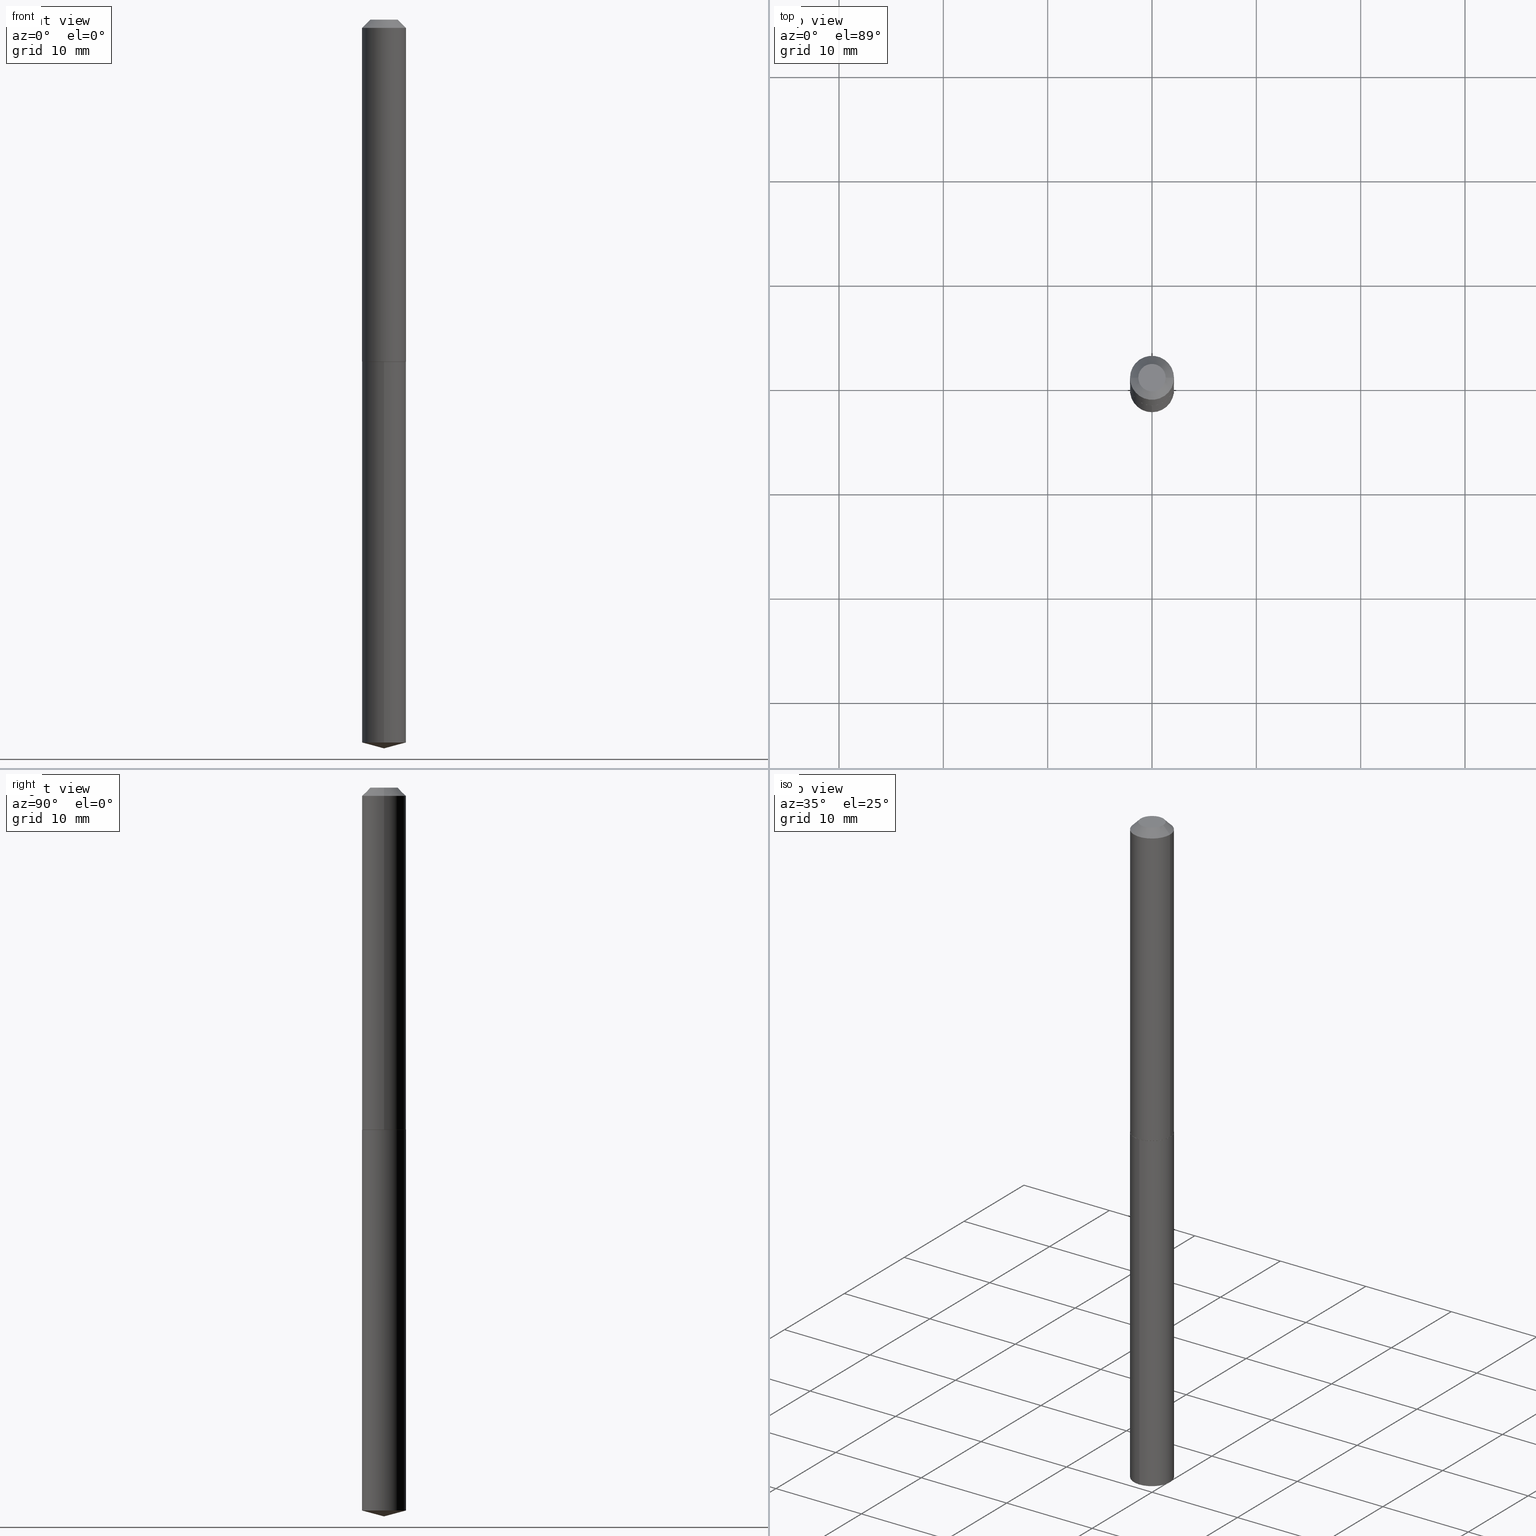
[diagram: canonical four-view strip — front | top / right | iso, engineering-drawing reading convention]
A machine part, canonical four-view strip (front | top / right | iso — engineering-drawing reading convention). The complete STEP part file that produces these views, byte-faithful:
ISO-10303-21;
HEADER;
FILE_DESCRIPTION (( 'STEP AP203' ),
    '1' );
FILE_NAME ('58032.STEP',
    '2024-04-23T00:34:03',
    ( '' ),
    ( '' ),
    'SwSTEP 2.0',
    'SolidWorks 2023',
    '' );
FILE_SCHEMA (( 'CONFIG_CONTROL_DESIGN' ));
ENDSEC;

DATA;
#1 = CARTESIAN_POINT ( 'NONE',  ( -7.487088864773333969E-48, 1.068957861474245803E-33, 3.061616997868390202E-19 ) ) ;
#2 = CIRCLE ( 'NONE', #229, 0.08300000000000000433 ) ;
#3 = DIRECTION ( 'NONE',  ( 1.000000000000000000, -6.982962677686270655E-15, 0.000000000000000000 ) ) ;
#4 = APPROVAL_ROLE ( '' ) ;
#5 = CYLINDRICAL_SURFACE ( 'NONE', #60, 0.08300000000000010147 ) ;
#6 = AXIS2_PLACEMENT_3D ( 'NONE', #174, #266, #3 ) ;
#7 = AXIS2_PLACEMENT_3D ( 'NONE', #113, #145, #199 ) ;
#8 = EDGE_CURVE ( 'NONE', #20, #187, #2, .T. ) ;
#9 = VERTEX_POINT ( 'NONE', #299 ) ;
#10 = COORDINATED_UNIVERSAL_TIME_OFFSET ( 5, 0, .BEHIND. ) ;
#11 = CLOSED_SHELL ( 'NONE', ( #210, #21, #66, #193, #379 ) ) ;
#12 = VECTOR ( 'NONE', #128, 39.37007874015748143 ) ;
#13 = EDGE_CURVE ( 'NONE', #109, #20, #61, .T. ) ;
#14 = ORIENTED_EDGE ( 'NONE', *, *, #131, .F. ) ;
#15 = DIRECTION ( 'NONE',  ( 1.000000000000000000, -6.982962677686267499E-15, 4.876134253573705861E-29 ) ) ;
#16 = ORIENTED_EDGE ( 'NONE', *, *, #13, .T. ) ;
#17 = DIRECTION ( 'NONE',  ( -2.445430008687302555E-29, 3.491536899068260310E-15, 1.000000000000000000 ) ) ;
#18 = VECTOR ( 'NONE', #46, 39.37007874015748854 ) ;
#19 = ADVANCED_FACE ( 'NONE', ( #295 ), #106, .T. ) ;
#20 = VERTEX_POINT ( 'NONE', #35 ) ;
#21 = ADVANCED_FACE ( 'NONE', ( #236 ), #215, .T. ) ;
#22 = CARTESIAN_POINT ( 'NONE',  ( 0.05175000000000001127, -5.167804485192814625E-16, 3.061616997899089043E-19 ) ) ;
#23 = ORIENTED_EDGE ( 'NONE', *, *, #369, .T. ) ;
#24 = CARTESIAN_POINT ( 'NONE',  ( -5.795859022478934309E-16, -0.08300000000000953837, -2.727760217028216250 ) ) ;
#25 = ORIENTED_EDGE ( 'NONE', *, *, #249, .T. ) ;
#26 = CARTESIAN_POINT ( 'NONE',  ( 6.670596778793894095E-29, -9.524003721313840210E-15, -2.727760217028216694 ) ) ;
#27 = AXIS2_PLACEMENT_3D ( 'NONE', #225, #196, #318 ) ;
#28 = CARTESIAN_POINT ( 'NONE',  ( -0.05175000000000001127, 4.159227144896877699E-16, 3.061616997841213404E-19 ) ) ;
#29 = CC_DESIGN_DATE_AND_TIME_ASSIGNMENT ( #70, #201, ( #144 ) ) ;
#30 = DIRECTION ( 'NONE',  ( -1.000000000000000000, 6.982962677686266711E-15, 0.000000000000000000 ) ) ;
#31 = PERSON_AND_ORGANIZATION ( #340, #282 ) ;
#32 = PRODUCT ( '58032', '58032', '', ( #237 ) ) ;
#33 = DIRECTION ( 'NONE',  ( -2.445430008687302555E-29, 3.491536899068260310E-15, 1.000000000000000000 ) ) ;
#34 =( NAMED_UNIT ( * ) SI_UNIT ( $, .STERADIAN. ) SOLID_ANGLE_UNIT ( ) );
#35 = CARTESIAN_POINT ( 'NONE',  ( -0.08300000000000000433, -1.717682259127079383E-15, -0.03125000000000020123 ) ) ;
#36 = CONICAL_SURFACE ( 'NONE', #148, 0.08300000000000018474, 0.7853981633979263410 ) ;
#37 = APPROVAL_PERSON_ORGANIZATION ( #239, #103, #41 ) ;
#38 = CALENDAR_DATE ( 2024, 22, 4 ) ;
#39 = ADVANCED_FACE ( 'NONE', ( #330 ), #85, .T. ) ;
#40 = DIRECTION ( 'NONE',  ( -1.000000000000000000, 6.982962677686266711E-15, 0.000000000000000000 ) ) ;
#41 = APPROVAL_ROLE ( '' ) ;
#42 = CARTESIAN_POINT ( 'NONE',  ( -5.795859022479286338E-16, -0.08300000000000451461, -1.290999999999999481 ) ) ;
#43 = CIRCLE ( 'NONE', #244, 0.08300000000000000433 ) ;
#44 = AXIS2_PLACEMENT_3D ( 'NONE', #172, #270, #91 ) ;
#45 = ORIENTED_EDGE ( 'NONE', *, *, #124, .T. ) ;
#46 = DIRECTION ( 'NONE',  ( 6.863315791527695837E-15, 0.9659258262890696445, 0.2588190451025154104 ) ) ;
#47 = ORIENTED_EDGE ( 'NONE', *, *, #326, .F. ) ;
#48 = FACE_OUTER_BOUND ( 'NONE', #258, .T. ) ;
#49 = ADVANCED_FACE ( 'NONE', ( #179 ), #36, .T. ) ;
#50 = ORIENTED_EDGE ( 'NONE', *, *, #326, .T. ) ;
#51 = CARTESIAN_POINT ( 'NONE',  ( 6.670596778793894095E-29, -9.524003721313840210E-15, -2.727760217028216694 ) ) ;
#52 = VECTOR ( 'NONE', #219, 39.37007874015748143 ) ;
#53 = ORIENTED_EDGE ( 'NONE', *, *, #249, .F. ) ;
#54 = CARTESIAN_POINT ( 'NONE',  ( 0.08300000000000000433, -6.785301256538861935E-16, -0.03125000000000020123 ) ) ;
#55 = VERTEX_POINT ( 'NONE', #235 ) ;
#56 = DIRECTION ( 'NONE',  ( 1.000000000000000000, -6.982962677686266711E-15, 0.000000000000000000 ) ) ;
#57 = ADVANCED_FACE ( 'NONE', ( #89 ), #293, .T. ) ;
#58 = LINE ( 'NONE', #357, #195 ) ;
#59 = AXIS2_PLACEMENT_3D ( 'NONE', #1, #126, #328 ) ;
#60 = AXIS2_PLACEMENT_3D ( 'NONE', #180, #212, #304 ) ;
#61 = LINE ( 'NONE', #122, #75 ) ;
#62 = CALENDAR_DATE ( 2024, 22, 4 ) ;
#63 = DIRECTION ( 'NONE',  ( 1.000000000000000000, -6.982962677686266711E-15, 0.000000000000000000 ) ) ;
#64 = PERSON_AND_ORGANIZATION_ROLE ( 'design_owner' ) ;
#65 = LINE ( 'NONE', #97, #101 ) ;
#66 = ADVANCED_FACE ( 'NONE', ( #354 ), #133, .T. ) ;
#67 = CC_DESIGN_DATE_AND_TIME_ASSIGNMENT ( #365, #99, ( #197 ) ) ;
#68 = CARTESIAN_POINT ( 'NONE',  ( 7.642090019328600035E-31, -1.091087918388489897E-16, -0.03125000000000020123 ) ) ;
#69 = AXIS2_PLACEMENT_3D ( 'NONE', #339, #188, #310 ) ;
#70 = DATE_AND_TIME ( #62, #324 ) ;
#71 = FACE_OUTER_BOUND ( 'NONE', #189, .T. ) ;
#72 = AXIS2_PLACEMENT_3D ( 'NONE', #265, #211, #263 ) ;
#73 = VERTEX_POINT ( 'NONE', #321 ) ;
#74 = CYLINDRICAL_SURFACE ( 'NONE', #135, 0.08300000000000000433 ) ;
#75 = VECTOR ( 'NONE', #238, 39.37007874015748143 ) ;
#76 = AXIS2_PLACEMENT_3D ( 'NONE', #108, #284, #376 ) ;
#77 = ORIENTED_EDGE ( 'NONE', *, *, #202, .T. ) ;
#78 = EDGE_CURVE ( 'NONE', #83, #20, #58, .T. ) ;
#79 = DIRECTION ( 'NONE',  ( -6.982962677686266711E-15, -1.000000000000000000, 6.582766249793405374E-15 ) ) ;
#80 = APPLICATION_CONTEXT ( 'configuration controlled 3d designs of mechanical parts and assemblies' ) ;
#81 = ORIENTED_EDGE ( 'NONE', *, *, #296, .F. ) ;
#82 = LINE ( 'NONE', #345, #305 ) ;
#83 = VERTEX_POINT ( 'NONE', #28 ) ;
#84 = DIRECTION ( 'NONE',  ( -1.000000000000000000, 6.982962677686265922E-15, -4.876176775795935793E-29 ) ) ;
#85 = CONICAL_SURFACE ( 'NONE', #259, 0.08300000000000018474, 0.7853981633979263410 ) ;
#86 = ORIENTED_EDGE ( 'NONE', *, *, #107, .T. ) ;
#87 = CARTESIAN_POINT ( 'NONE',  ( -3.743544432386666985E-48, 5.344789307371229014E-34, 1.530808498934195101E-19 ) ) ;
#88 = PRODUCT_RELATED_PRODUCT_CATEGORY ( 'detail', '', ( #32 ) ) ;
#89 = FACE_OUTER_BOUND ( 'NONE', #251, .T. ) ;
#90 = CARTESIAN_POINT ( 'NONE',  ( 5.897504706809497452E-16, 0.08299999999999047029, -2.727760217028217582 ) ) ;
#91 = DIRECTION ( 'NONE',  ( -6.982962677686265922E-15, -1.000000000000000000, 3.510303681827612034E-15 ) ) ;
#92 = COORDINATED_UNIVERSAL_TIME_OFFSET ( 5, 0, .BEHIND. ) ;
#93 = AXIS2_PLACEMENT_3D ( 'NONE', #162, #115, #372 ) ;
#94 = COORDINATED_UNIVERSAL_TIME_OFFSET ( 5, 0, .BEHIND. ) ;
#95 = EDGE_CURVE ( 'NONE', #381, #9, #65, .T. ) ;
#96 = ADVANCED_FACE ( 'NONE', ( #207 ), #203, .F. ) ;
#97 = CARTESIAN_POINT ( 'NONE',  ( 5.897504706809146409E-16, 0.08299999999999550793, -1.290999999999999925 ) ) ;
#98 = CARTESIAN_POINT ( 'NONE',  ( 3.157100228785009728E-29, -4.507502408446498919E-15, -1.290999999999999481 ) ) ;
#99 = DATE_TIME_ROLE ( 'classification_date' ) ;
#100 = DIRECTION ( 'NONE',  ( -0.7071067811868855246, 7.493145998871575317E-15, 0.7071067811862095098 ) ) ;
#101 = VECTOR ( 'NONE', #33, 39.37007874015748143 ) ;
#102 = VECTOR ( 'NONE', #286, 39.37007874015748143 ) ;
#103 = APPROVAL ( #362, 'UNSPECIFIED' ) ;
#104 = ORIENTED_EDGE ( 'NONE', *, *, #277, .F. ) ;
#105 = DESIGN_CONTEXT ( 'detailed design', #80, 'design' ) ;
#106 = CONICAL_SURFACE ( 'NONE', #315, 0.08300000000000000433, 0.7853981633974450594 ) ;
#107 = EDGE_CURVE ( 'NONE', #342, #319, #348, .T. ) ;
#108 = CARTESIAN_POINT ( 'NONE',  ( 3.157100228785010288E-29, -4.507502408446500497E-15, -1.290999999999999703 ) ) ;
#109 = VERTEX_POINT ( 'NONE', #327 ) ;
#110 = CYLINDRICAL_SURFACE ( 'NONE', #359, 0.08300000000000000433 ) ;
#111 = LOCAL_TIME ( 20, 34, 3.000000000000000000, #242 ) ;
#112 = EDGE_LOOP ( 'NONE', ( #14, #351, #159, #283 ) ) ;
#113 = CARTESIAN_POINT ( 'NONE',  ( 3.157100228785010288E-29, -4.507502408446500497E-15, -1.290999999999999703 ) ) ;
#114 = ORIENTED_EDGE ( 'NONE', *, *, #213, .T. ) ;
#115 = DIRECTION ( 'NONE',  ( -2.445468806185136597E-29, 3.491481338843145583E-15, 1.000000000000000000 ) ) ;
#116 = EDGE_LOOP ( 'NONE', ( #161, #168, #130, #309 ) ) ;
#117 = FACE_OUTER_BOUND ( 'NONE', #377, .T. ) ;
#118 = DIRECTION ( 'NONE',  ( -2.445468806185136597E-29, 3.491481338843145583E-15, 1.000000000000000000 ) ) ;
#119 = APPROVAL_DATE_TIME ( #329, #103 ) ;
#120 = DIRECTION ( 'NONE',  ( 1.000000000000000000, -6.982962677686270655E-15, 0.000000000000000000 ) ) ;
#121 = LENGTH_MEASURE_WITH_UNIT ( LENGTH_MEASURE( 0.02539999999999999897 ), #204 );
#122 = CARTESIAN_POINT ( 'NONE',  ( -0.08300000000000010147, 5.897504706808838753E-16, -4.082716124911576462E-30 ) ) ;
#123 = CALENDAR_DATE ( 2024, 22, 4 ) ;
#124 = EDGE_CURVE ( 'NONE', #55, #109, #186, .T. ) ;
#125 = LOCAL_TIME ( 20, 34, 3.000000000000000000, #92 ) ;
#126 = DIRECTION ( 'NONE',  ( -2.445468806185136597E-29, 3.491481338843145583E-15, 1.000000000000000000 ) ) ;
#127 = FACE_OUTER_BOUND ( 'NONE', #183, .T. ) ;
#128 = DIRECTION ( 'NONE',  ( -2.445430008687302555E-29, 3.491536899068260310E-15, 1.000000000000000000 ) ) ;
#129 = AXIS2_PLACEMENT_3D ( 'NONE', #51, #17, #192 ) ;
#130 = ORIENTED_EDGE ( 'NONE', *, *, #184, .T. ) ;
#131 = EDGE_CURVE ( 'NONE', #344, #83, #220, .T. ) ;
#132 = SHAPE_DEFINITION_REPRESENTATION ( #208, #271 ) ;
#133 = CONICAL_SURFACE ( 'NONE', #44, 146.9311341562562063, 1.308996938995749204 ) ;
#134 = APPROVAL ( #353, 'UNSPECIFIED' ) ;
#135 = AXIS2_PLACEMENT_3D ( 'NONE', #257, #378, #281 ) ;
#136 = ADVANCED_FACE ( 'NONE', ( #127 ), #316, .T. ) ;
#137 = ORIENTED_EDGE ( 'NONE', *, *, #363, .F. ) ;
#138 = FACE_OUTER_BOUND ( 'NONE', #385, .T. ) ;
#139 = ORIENTED_EDGE ( 'NONE', *, *, #349, .F. ) ;
#140 = DIRECTION ( 'NONE',  ( 0.7071067811868855246, -2.468850131085797074E-15, 0.7071067811862095098 ) ) ;
#141 = ORIENTED_EDGE ( 'NONE', *, *, #131, .T. ) ;
#142 = DIRECTION ( 'NONE',  ( -6.745023994389841499E-15, -0.9659258262890678681, 0.2588190451025221828 ) ) ;
#143 = CARTESIAN_POINT ( 'NONE',  ( 7.642090019328600035E-31, -1.091087918388489897E-16, -0.03125000000000020123 ) ) ;
#144 = PRODUCT_DEFINITION ( 'UNKNOWN', '', #274, #105 ) ;
#145 = DIRECTION ( 'NONE',  ( -2.445430008687302555E-29, 3.491536899068260310E-15, 1.000000000000000000 ) ) ;
#146 = ORIENTED_EDGE ( 'NONE', *, *, #184, .F. ) ;
#147 = CARTESIAN_POINT ( 'NONE',  ( 6.725033577447213903E-29, -9.601583015936470550E-15, -2.750000000000000000 ) ) ;
#148 = AXIS2_PLACEMENT_3D ( 'NONE', #262, #364, #120 ) ;
#149 =( GEOMETRIC_REPRESENTATION_CONTEXT ( 3 ) GLOBAL_UNCERTAINTY_ASSIGNED_CONTEXT ( ( #276 ) ) GLOBAL_UNIT_ASSIGNED_CONTEXT ( ( #388, #260, #34 ) ) REPRESENTATION_CONTEXT ( 'NONE', 'WORKASPACE' ) );
#150 = ADVANCED_FACE ( 'NONE', ( #71 ), #5, .T. ) ;
#151 = CARTESIAN_POINT ( 'NONE',  ( 3.155877494381918608E-29, -4.505756667777078994E-15, -1.290499999999999758 ) ) ;
#152 = PERSON_AND_ORGANIZATION_ROLE ( 'classification_officer' ) ;
#153 = DIRECTION ( 'NONE',  ( -0.7071067811865452413, 2.468850131082233000E-15, -0.7071067811865497932 ) ) ;
#154 = DIRECTION ( 'NONE',  ( 1.000000000000000000, -6.982962677686270655E-15, 0.000000000000000000 ) ) ;
#155 = LINE ( 'NONE', #42, #12 ) ;
#156 = APPROVAL_PERSON_ORGANIZATION ( #175, #333, #4 ) ;
#157 = DATE_AND_TIME ( #306, #205 ) ;
#158 = CIRCLE ( 'NONE', #7, 0.08300000000000000433 ) ;
#159 = ORIENTED_EDGE ( 'NONE', *, *, #217, .T. ) ;
#160 = CARTESIAN_POINT ( 'NONE',  ( 0.08250000000000007327, -5.083596829355616396E-15, -1.290999999999999481 ) ) ;
#161 = ORIENTED_EDGE ( 'NONE', *, *, #95, .F. ) ;
#162 = CARTESIAN_POINT ( 'NONE',  ( 3.155877494381918608E-29, -4.505756667777078994E-15, -1.290499999999999758 ) ) ;
#163 = ORIENTED_EDGE ( 'NONE', *, *, #181, .T. ) ;
#164 = LINE ( 'NONE', #147, #18 ) ;
#165 = APPROVAL_PERSON_ORGANIZATION ( #233, #134, #185 ) ;
#166 = ORIENTED_EDGE ( 'NONE', *, *, #336, .F. ) ;
#167 = DIRECTION ( 'NONE',  ( -2.445468806185136597E-29, 3.491481338843145583E-15, 1.000000000000000000 ) ) ;
#168 = ORIENTED_EDGE ( 'NONE', *, *, #277, .T. ) ;
#169 = LINE ( 'NONE', #54, #102 ) ;
#170 = CARTESIAN_POINT ( 'NONE',  ( -8.955178938410331359E-28, 1.278604278962956094E-13, 36.62007874015748143 ) ) ;
#171 = CIRCLE ( 'NONE', #27, 0.08250000000000007327 ) ;
#172 = CARTESIAN_POINT ( 'NONE',  ( -8.955178938410331359E-28, 1.278604278962956094E-13, 36.62007874015748143 ) ) ;
#173 = PERSON_AND_ORGANIZATION ( #340, #282 ) ;
#174 = CARTESIAN_POINT ( 'NONE',  ( 3.155877494381918608E-29, -4.505756667777078994E-15, -1.290499999999999758 ) ) ;
#175 = PERSON_AND_ORGANIZATION ( #340, #282 ) ;
#176 = DIRECTION ( 'NONE',  ( 1.000000000000000000, -6.982962677686265922E-15, 4.876176775795935793E-29 ) ) ;
#177 = DATE_AND_TIME ( #38, #335 ) ;
#178 = CC_DESIGN_SECURITY_CLASSIFICATION ( #197, ( #274 ) ) ;
#179 = FACE_OUTER_BOUND ( 'NONE', #373, .T. ) ;
#180 = CARTESIAN_POINT ( 'NONE',  ( 0.000000000000000000, 0.000000000000000000, 0.000000000000000000 ) ) ;
#181 = EDGE_CURVE ( 'NONE', #319, #109, #366, .T. ) ;
#182 = AXIS2_PLACEMENT_3D ( 'NONE', #87, #343, #84 ) ;
#183 = EDGE_LOOP ( 'NONE', ( #137, #81, #214, #370 ) ) ;
#184 = EDGE_CURVE ( 'NONE', #368, #226, #155, .T. ) ;
#185 = APPROVAL_ROLE ( '' ) ;
#186 = CIRCLE ( 'NONE', #6, 0.08300000000000018474 ) ;
#187 = VERTEX_POINT ( 'NONE', #243 ) ;
#188 = DIRECTION ( 'NONE',  ( 2.445430008687302275E-29, -3.491536899068260310E-15, -1.000000000000000000 ) ) ;
#189 = EDGE_LOOP ( 'NONE', ( #247, #114, #23, #313 ) ) ;
#190 = CARTESIAN_POINT ( 'NONE',  ( -0.08250000000000007327, -3.918655424270305728E-15, -1.290999999999999481 ) ) ;
#191 = ORIENTED_EDGE ( 'NONE', *, *, #336, .T. ) ;
#192 = DIRECTION ( 'NONE',  ( -6.982962677686266711E-15, -1.000000000000000000, 6.582766249793405374E-15 ) ) ;
#193 = ADVANCED_FACE ( 'NONE', ( #279 ), #74, .T. ) ;
#194 = ORIENTED_EDGE ( 'NONE', *, *, #296, .T. ) ;
#195 = VECTOR ( 'NONE', #153, 39.37007874015748143 ) ;
#196 = DIRECTION ( 'NONE',  ( -2.445468806185136597E-29, 3.491481338843145583E-15, 1.000000000000000000 ) ) ;
#197 = SECURITY_CLASSIFICATION ( '', '', #294 ) ;
#198 = ORIENTED_EDGE ( 'NONE', *, *, #369, .F. ) ;
#199 = DIRECTION ( 'NONE',  ( -6.982962677686266711E-15, -1.000000000000000000, 3.291383124896702687E-15 ) ) ;
#200 = DIRECTION ( 'NONE',  ( 1.000000000000000000, -6.982962677686265922E-15, 4.876176775795935232E-29 ) ) ;
#201 = DATE_TIME_ROLE ( 'creation_date' ) ;
#202 = EDGE_CURVE ( 'NONE', #73, #368, #82, .T. ) ;
#203 = PLANE ( 'NONE',  #301 ) ;
#204 =( LENGTH_UNIT ( ) NAMED_UNIT ( * ) SI_UNIT ( $, .METRE. ) );
#205 = LOCAL_TIME ( 20, 34, 3.000000000000000000, #10 ) ;
#206 = DIRECTION ( 'NONE',  ( 1.000000000000000000, -6.982962677686261189E-15, 0.000000000000000000 ) ) ;
#207 = FACE_OUTER_BOUND ( 'NONE', #337, .T. ) ;
#208 = PRODUCT_DEFINITION_SHAPE ( 'NONE', 'NONE',  #144 ) ;
#209 = DIRECTION ( 'NONE',  ( -2.445430008687302555E-29, 3.491536899068260310E-15, 1.000000000000000000 ) ) ;
#210 = ADVANCED_FACE ( 'NONE', ( #138 ), #110, .T. ) ;
#211 = DIRECTION ( 'NONE',  ( 0.000000000000000000, 0.000000000000000000, 1.000000000000000000 ) ) ;
#212 = DIRECTION ( 'NONE',  ( -2.445468806185136597E-29, 3.491481338843145583E-15, 1.000000000000000000 ) ) ;
#213 = EDGE_CURVE ( 'NONE', #109, #55, #216, .T. ) ;
#214 = ORIENTED_EDGE ( 'NONE', *, *, #78, .T. ) ;
#215 = CONICAL_SURFACE ( 'NONE', #273, 146.9311341562562063, 1.308996938995749204 ) ;
#216 = CIRCLE ( 'NONE', #93, 0.08300000000000018474 ) ;
#217 = EDGE_CURVE ( 'NONE', #187, #20, #371, .T. ) ;
#218 = ORIENTED_EDGE ( 'NONE', *, *, #124, .F. ) ;
#219 = DIRECTION ( 'NONE',  ( -2.445468806185136877E-29, 3.491481338843145188E-15, 1.000000000000000000 ) ) ;
#220 = CIRCLE ( 'NONE', #59, 0.05175000000000001127 ) ;
#221 = ORIENTED_EDGE ( 'NONE', *, *, #107, .F. ) ;
#222 = AXIS2_PLACEMENT_3D ( 'NONE', #241, #302, #40 ) ;
#223 = PLANE ( 'NONE',  #182 ) ;
#224 = ORIENTED_EDGE ( 'NONE', *, *, #240, .T. ) ;
#225 = CARTESIAN_POINT ( 'NONE',  ( 3.157100228785009728E-29, -4.507502408446498919E-15, -1.290999999999999481 ) ) ;
#226 = VERTEX_POINT ( 'NONE', #347 ) ;
#227 = DIRECTION ( 'NONE',  ( -6.982962677686266711E-15, -1.000000000000000000, 3.291383124896702687E-15 ) ) ;
#228 = DIRECTION ( 'NONE',  ( -2.445468806185136597E-29, 3.491481338843145583E-15, 1.000000000000000000 ) ) ;
#229 = AXIS2_PLACEMENT_3D ( 'NONE', #143, #228, #63 ) ;
#230 = PLANE ( 'NONE',  #69 ) ;
#231 = CIRCLE ( 'NONE', #308, 0.05175000000000001127 ) ;
#232 = DIRECTION ( 'NONE',  ( -2.445468806185136597E-29, 3.491481338843145583E-15, 1.000000000000000000 ) ) ;
#233 = PERSON_AND_ORGANIZATION ( #340, #282 ) ;
#234 = CC_DESIGN_PERSON_AND_ORGANIZATION_ASSIGNMENT ( #173, #300, ( #274 ) ) ;
#235 = CARTESIAN_POINT ( 'NONE',  ( 0.08300000000000018474, -5.085342570025040266E-15, -1.290499999999999758 ) ) ;
#236 = FACE_OUTER_BOUND ( 'NONE', #375, .T. ) ;
#237 = MECHANICAL_CONTEXT ( 'NONE', #380, 'mechanical' ) ;
#238 = DIRECTION ( 'NONE',  ( -2.445468806185136877E-29, 3.491481338843145188E-15, 1.000000000000000000 ) ) ;
#239 = PERSON_AND_ORGANIZATION ( #340, #282 ) ;
#240 = EDGE_CURVE ( 'NONE', #368, #381, #261, .T. ) ;
#241 = CARTESIAN_POINT ( 'NONE',  ( 7.642090019328600035E-31, -1.091087918388489897E-16, -0.03125000000000020123 ) ) ;
#242 = COORDINATED_UNIVERSAL_TIME_OFFSET ( 5, 0, .BEHIND. ) ;
#243 = CARTESIAN_POINT ( 'NONE',  ( 0.08300000000000000433, -6.886946940868090917E-16, -0.03125000000000020123 ) ) ;
#244 = AXIS2_PLACEMENT_3D ( 'NONE', #26, #314, #79 ) ;
#245 = EDGE_LOOP ( 'NONE', ( #166, #77, #104 ) ) ;
#246 = MANIFOLD_SOLID_BREP ( 'Body-Move/Copy2[1]', #11 ) ;
#247 = ORIENTED_EDGE ( 'NONE', *, *, #13, .F. ) ;
#248 = CARTESIAN_POINT ( 'NONE',  ( -7.487088864773333969E-48, 1.068957861474245803E-33, 3.061616997868390202E-19 ) ) ;
#249 = EDGE_CURVE ( 'NONE', #226, #9, #158, .T. ) ;
#250 = CIRCLE ( 'NONE', #76, 0.08300000000000000433 ) ;
#251 = EDGE_LOOP ( 'NONE', ( #45, #16, #254, #198 ) ) ;
#252 = DIRECTION ( 'NONE',  ( -2.445468806185136597E-29, 3.491481338843145583E-15, 1.000000000000000000 ) ) ;
#253 = MANIFOLD_SOLID_BREP ( 'Body-Move/Copy2[2]', #291 ) ;
#254 = ORIENTED_EDGE ( 'NONE', *, *, #217, .F. ) ;
#255 = CARTESIAN_POINT ( 'NONE',  ( 0.08300000000000018474, -5.085342570025040266E-15, -1.290499999999999758 ) ) ;
#256 = ORIENTED_EDGE ( 'NONE', *, *, #181, .F. ) ;
#257 = CARTESIAN_POINT ( 'NONE',  ( 3.157100228785010288E-29, -4.507502408446500497E-15, -1.290999999999999703 ) ) ;
#258 = EDGE_LOOP ( 'NONE', ( #194, #141 ) ) ;
#259 = AXIS2_PLACEMENT_3D ( 'NONE', #151, #118, #154 ) ;
#260 =( NAMED_UNIT ( * ) PLANE_ANGLE_UNIT ( ) SI_UNIT ( $, .RADIAN. ) );
#261 = CIRCLE ( 'NONE', #129, 0.08300000000000000433 ) ;
#262 = CARTESIAN_POINT ( 'NONE',  ( 3.155877494381918608E-29, -4.505756667777078994E-15, -1.290499999999999758 ) ) ;
#263 = DIRECTION ( 'NONE',  ( 1.000000000000000000, 0.000000000000000000, 0.000000000000000000 ) ) ;
#264 = CARTESIAN_POINT ( 'NONE',  ( 3.157100228785009728E-29, -4.507502408446498919E-15, -1.290999999999999481 ) ) ;
#265 = CARTESIAN_POINT ( 'NONE',  ( 0.000000000000000000, 0.000000000000000000, 0.000000000000000000 ) ) ;
#266 = DIRECTION ( 'NONE',  ( -2.445468806185136597E-29, 3.491481338843145583E-15, 1.000000000000000000 ) ) ;
#267 = PERSON_AND_ORGANIZATION ( #340, #282 ) ;
#268 = CC_DESIGN_PERSON_AND_ORGANIZATION_ASSIGNMENT ( #31, #152, ( #197 ) ) ;
#269 = PERSON_AND_ORGANIZATION_ROLE ( 'design_supplier' ) ;
#270 = DIRECTION ( 'NONE',  ( -2.445430008687302555E-29, 3.491536899068260310E-15, 1.000000000000000000 ) ) ;
#271 = ADVANCED_BREP_SHAPE_REPRESENTATION ( '58032', ( #246, #253, #72 ), #149 ) ;
#272 = ADVANCED_FACE ( 'NONE', ( #48 ), #223, .F. ) ;
#273 = AXIS2_PLACEMENT_3D ( 'NONE', #170, #209, #387 ) ;
#274 = PRODUCT_DEFINITION_FORMATION_WITH_SPECIFIED_SOURCE ( 'ANY', '', #32, .NOT_KNOWN. ) ;
#275 = AXIS2_PLACEMENT_3D ( 'NONE', #320, #167, #56 ) ;
#276 = UNCERTAINTY_MEASURE_WITH_UNIT (LENGTH_MEASURE( 1.000000000000000082E-05 ), #388, 'distance_accuracy_value', 'NONE');
#277 = EDGE_CURVE ( 'NONE', #381, #368, #43, .T. ) ;
#278 = EDGE_LOOP ( 'NONE', ( #86, #163, #218, #47 ) ) ;
#279 = FACE_OUTER_BOUND ( 'NONE', #116, .T. ) ;
#280 = ORIENTED_EDGE ( 'NONE', *, *, #202, .F. ) ;
#281 = DIRECTION ( 'NONE',  ( -6.982962677686266711E-15, -1.000000000000000000, 3.291383124896702687E-15 ) ) ;
#282 = ORGANIZATION ( 'UNSPECIFIED', 'UNSPECIFIED', '' ) ;
#283 = ORIENTED_EDGE ( 'NONE', *, *, #78, .F. ) ;
#284 = DIRECTION ( 'NONE',  ( -2.445430008687302555E-29, 3.491536899068260310E-15, 1.000000000000000000 ) ) ;
#285 = ORIENTED_EDGE ( 'NONE', *, *, #240, .F. ) ;
#286 = DIRECTION ( 'NONE',  ( 0.7071067811865452413, -7.319954787623248157E-15, -0.7071067811865497932 ) ) ;
#287 = ORIENTED_EDGE ( 'NONE', *, *, #338, .T. ) ;
#288 = CC_DESIGN_PERSON_AND_ORGANIZATION_ASSIGNMENT ( #297, #269, ( #274 ) ) ;
#289 = LINE ( 'NONE', #382, #52 ) ;
#290 = DIRECTION ( 'NONE',  ( 2.445468806185136597E-29, -3.491481338843145583E-15, -1.000000000000000000 ) ) ;
#291 = CLOSED_SHELL ( 'NONE', ( #19, #57, #39, #96, #49, #150, #136, #272 ) ) ;
#292 = VECTOR ( 'NONE', #140, 39.37007874015748143 ) ;
#293 = CYLINDRICAL_SURFACE ( 'NONE', #383, 0.08300000000000010147 ) ;
#294 = SECURITY_CLASSIFICATION_LEVEL ( 'unclassified' ) ;
#295 = FACE_OUTER_BOUND ( 'NONE', #112, .T. ) ;
#296 = EDGE_CURVE ( 'NONE', #83, #344, #231, .T. ) ;
#297 = PERSON_AND_ORGANIZATION ( #340, #282 ) ;
#298 = CC_DESIGN_PERSON_AND_ORGANIZATION_ASSIGNMENT ( #267, #64, ( #32 ) ) ;
#299 = CARTESIAN_POINT ( 'NONE',  ( 5.897504706809500410E-16, 0.08299999999999550793, -1.290999999999999925 ) ) ;
#300 = PERSON_AND_ORGANIZATION_ROLE ( 'creator' ) ;
#301 = AXIS2_PLACEMENT_3D ( 'NONE', #98, #323, #176 ) ;
#302 = DIRECTION ( 'NONE',  ( 2.445468806185136597E-29, -3.491481338843145583E-15, -1.000000000000000000 ) ) ;
#303 = COORDINATED_UNIVERSAL_TIME_OFFSET ( 5, 0, .BEHIND. ) ;
#304 = DIRECTION ( 'NONE',  ( 1.000000000000000000, -6.982962677686265922E-15, 4.876176775795935232E-29 ) ) ;
#305 = VECTOR ( 'NONE', #142, 39.37007874015748854 ) ;
#306 = CALENDAR_DATE ( 2024, 22, 4 ) ;
#307 = APPROVAL_DATE_TIME ( #157, #134 ) ;
#308 = AXIS2_PLACEMENT_3D ( 'NONE', #248, #252, #15 ) ;
#309 = ORIENTED_EDGE ( 'NONE', *, *, #338, .F. ) ;
#310 = DIRECTION ( 'NONE',  ( 6.982962677686265922E-15, 1.000000000000000000, -3.491536899068260310E-15 ) ) ;
#311 = ORIENTED_EDGE ( 'NONE', *, *, #95, .T. ) ;
#312 = LINE ( 'NONE', #255, #292 ) ;
#313 = ORIENTED_EDGE ( 'NONE', *, *, #8, .F. ) ;
#314 = DIRECTION ( 'NONE',  ( -2.445430008687302555E-29, 3.491536899068260310E-15, 1.000000000000000000 ) ) ;
#315 = AXIS2_PLACEMENT_3D ( 'NONE', #68, #290, #30 ) ;
#316 = CONICAL_SURFACE ( 'NONE', #222, 0.08300000000000000433, 0.7853981633974450594 ) ;
#317 = ORIENTED_EDGE ( 'NONE', *, *, #349, .T. ) ;
#318 = DIRECTION ( 'NONE',  ( 1.000000000000000000, -6.982962677686261189E-15, 0.000000000000000000 ) ) ;
#319 = VERTEX_POINT ( 'NONE', #190 ) ;
#320 = CARTESIAN_POINT ( 'NONE',  ( 7.642090019328600035E-31, -1.091087918388489897E-16, -0.03125000000000020123 ) ) ;
#321 = CARTESIAN_POINT ( 'NONE',  ( 6.724932523890081046E-29, -9.601726472437715656E-15, -2.750000000000000000 ) ) ;
#322 = APPROVAL_STATUS ( 'not_yet_approved' ) ;
#323 = DIRECTION ( 'NONE',  ( -2.438088387897960049E-29, 3.491481338843145188E-15, 1.000000000000000000 ) ) ;
#324 = LOCAL_TIME ( 20, 34, 3.000000000000000000, #303 ) ;
#325 = PERSON_AND_ORGANIZATION ( #340, #282 ) ;
#326 = EDGE_CURVE ( 'NONE', #342, #55, #312, .T. ) ;
#327 = CARTESIAN_POINT ( 'NONE',  ( -0.08300000000000018474, -3.916006197096194527E-15, -1.290499999999999758 ) ) ;
#328 = DIRECTION ( 'NONE',  ( 1.000000000000000000, -6.982962677686267499E-15, 4.876134253573705861E-29 ) ) ;
#329 = DATE_AND_TIME ( #386, #125 ) ;
#330 = FACE_OUTER_BOUND ( 'NONE', #278, .T. ) ;
#331 = PERSON_AND_ORGANIZATION_ROLE ( 'creator' ) ;
#332 = CC_DESIGN_APPROVAL ( #333, ( #274 ) ) ;
#333 = APPROVAL ( #322, 'UNSPECIFIED' ) ;
#334 = CARTESIAN_POINT ( 'NONE',  ( -0.08300000000000018474, -3.916006197096194527E-15, -1.290499999999999758 ) ) ;
#335 = LOCAL_TIME ( 20, 34, 3.000000000000000000, #94 ) ;
#336 = EDGE_CURVE ( 'NONE', #73, #381, #164, .T. ) ;
#337 = EDGE_LOOP ( 'NONE', ( #221, #139 ) ) ;
#338 = EDGE_CURVE ( 'NONE', #9, #226, #250, .T. ) ;
#339 = CARTESIAN_POINT ( 'NONE',  ( 3.157100228785010288E-29, -4.507502408446500497E-15, -1.290999999999999703 ) ) ;
#340 = PERSON ( 'UNSPECIFIED', 'UNSPECIFIED', 'UNSPECIFIED', ('UNSPECIFIED'), ('UNSPECIFIED'), ('UNSPECIFIED') ) ;
#341 = VECTOR ( 'NONE', #100, 39.37007874015748143 ) ;
#342 = VERTEX_POINT ( 'NONE', #160 ) ;
#343 = DIRECTION ( 'NONE',  ( 2.438088387897960049E-29, -3.491481338843145188E-15, -1.000000000000000000 ) ) ;
#344 = VERTEX_POINT ( 'NONE', #22 ) ;
#345 = CARTESIAN_POINT ( 'NONE',  ( 6.724932523890081046E-29, -9.601726472437715656E-15, -2.750000000000000000 ) ) ;
#346 = ORIENTED_EDGE ( 'NONE', *, *, #213, .F. ) ;
#347 = CARTESIAN_POINT ( 'NONE',  ( -5.795859022479286338E-16, -0.08300000000000451461, -1.290999999999999481 ) ) ;
#348 = CIRCLE ( 'NONE', #367, 0.08250000000000007327 ) ;
#349 = EDGE_CURVE ( 'NONE', #319, #342, #171, .T. ) ;
#350 = CC_DESIGN_APPROVAL ( #134, ( #197 ) ) ;
#351 = ORIENTED_EDGE ( 'NONE', *, *, #363, .T. ) ;
#352 = CARTESIAN_POINT ( 'NONE',  ( 3.157100228785010288E-29, -4.507502408446500497E-15, -1.290999999999999703 ) ) ;
#353 = APPROVAL_STATUS ( 'not_yet_approved' ) ;
#354 = FACE_OUTER_BOUND ( 'NONE', #245, .T. ) ;
#355 = APPLICATION_PROTOCOL_DEFINITION ( 'international standard', 'config_control_design', 1994, #80 ) ;
#356 = DIMENSIONAL_EXPONENTS ( 1.000000000000000000, 0.000000000000000000, 0.000000000000000000, 0.000000000000000000, 0.000000000000000000, 0.000000000000000000, 0.000000000000000000 ) ;
#357 = CARTESIAN_POINT ( 'NONE',  ( -0.08300000000000000433, 4.704771104091111862E-16, -0.03125000000000020123 ) ) ;
#358 = CC_DESIGN_PERSON_AND_ORGANIZATION_ASSIGNMENT ( #325, #331, ( #144 ) ) ;
#359 = AXIS2_PLACEMENT_3D ( 'NONE', #352, #374, #227 ) ;
#360 = APPLICATION_PROTOCOL_DEFINITION ( 'international standard', 'config_control_design', 1994, #380 ) ;
#361 = CARTESIAN_POINT ( 'NONE',  ( 0.000000000000000000, 0.000000000000000000, 0.000000000000000000 ) ) ;
#362 = APPROVAL_STATUS ( 'not_yet_approved' ) ;
#363 = EDGE_CURVE ( 'NONE', #344, #187, #169, .T. ) ;
#364 = DIRECTION ( 'NONE',  ( -2.445468806185136597E-29, 3.491481338843145583E-15, 1.000000000000000000 ) ) ;
#365 = DATE_AND_TIME ( #123, #111 ) ;
#366 = LINE ( 'NONE', #334, #341 ) ;
#367 = AXIS2_PLACEMENT_3D ( 'NONE', #264, #389, #206 ) ;
#368 = VERTEX_POINT ( 'NONE', #24 ) ;
#369 = EDGE_CURVE ( 'NONE', #55, #187, #289, .T. ) ;
#370 = ORIENTED_EDGE ( 'NONE', *, *, #8, .T. ) ;
#371 = CIRCLE ( 'NONE', #275, 0.08300000000000000433 ) ;
#372 = DIRECTION ( 'NONE',  ( 1.000000000000000000, -6.982962677686270655E-15, 0.000000000000000000 ) ) ;
#373 = EDGE_LOOP ( 'NONE', ( #256, #317, #50, #346 ) ) ;
#374 = DIRECTION ( 'NONE',  ( -2.445430008687302555E-29, 3.491536899068260310E-15, 1.000000000000000000 ) ) ;
#375 = EDGE_LOOP ( 'NONE', ( #280, #191, #285 ) ) ;
#376 = DIRECTION ( 'NONE',  ( -6.982962677686266711E-15, -1.000000000000000000, 3.291383124896702687E-15 ) ) ;
#377 = EDGE_LOOP ( 'NONE', ( #25, #287 ) ) ;
#378 = DIRECTION ( 'NONE',  ( -2.445430008687302555E-29, 3.491536899068260310E-15, 1.000000000000000000 ) ) ;
#379 = ADVANCED_FACE ( 'NONE', ( #117 ), #230, .F. ) ;
#380 = APPLICATION_CONTEXT ( 'configuration controlled 3d designs of mechanical parts and assemblies' ) ;
#381 = VERTEX_POINT ( 'NONE', #90 ) ;
#382 = CARTESIAN_POINT ( 'NONE',  ( 0.08300000000000010147, -5.795859022479607799E-16, 4.047226723910630996E-30 ) ) ;
#383 = AXIS2_PLACEMENT_3D ( 'NONE', #361, #232, #200 ) ;
#384 = CC_DESIGN_APPROVAL ( #103, ( #144 ) ) ;
#385 = EDGE_LOOP ( 'NONE', ( #224, #311, #53, #146 ) ) ;
#386 = CALENDAR_DATE ( 2024, 22, 4 ) ;
#387 = DIRECTION ( 'NONE',  ( -6.982962677686265922E-15, -1.000000000000000000, 3.510303681827612034E-15 ) ) ;
#388 =( CONVERSION_BASED_UNIT ( 'INCH', #121 ) LENGTH_UNIT ( ) NAMED_UNIT ( #356 ) );
#389 = DIRECTION ( 'NONE',  ( -2.445468806185136597E-29, 3.491481338843145583E-15, 1.000000000000000000 ) ) ;
#390 = APPROVAL_DATE_TIME ( #177, #333 ) ;
ENDSEC;
END-ISO-10303-21;
